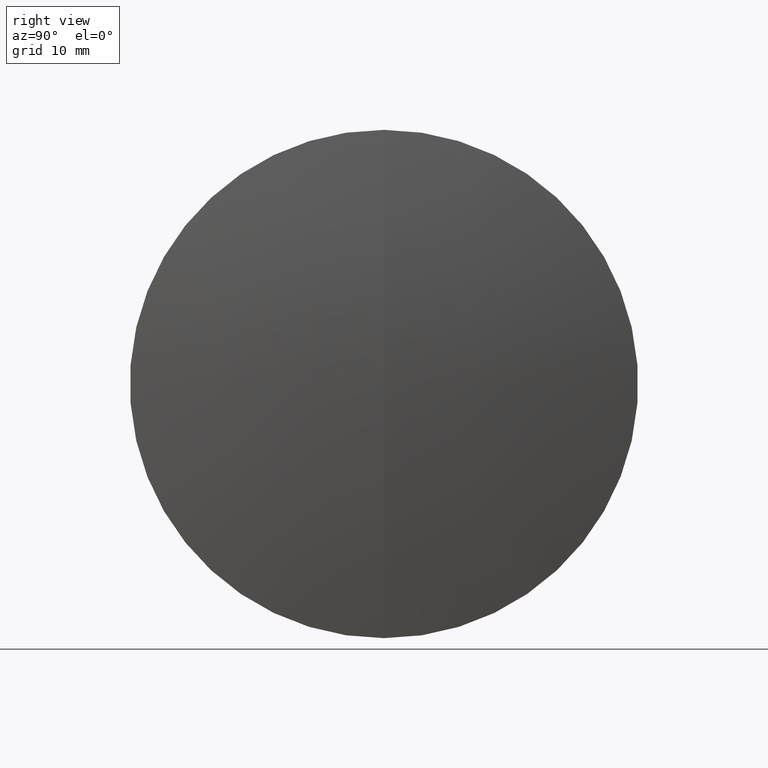
[diagram: clean part render]
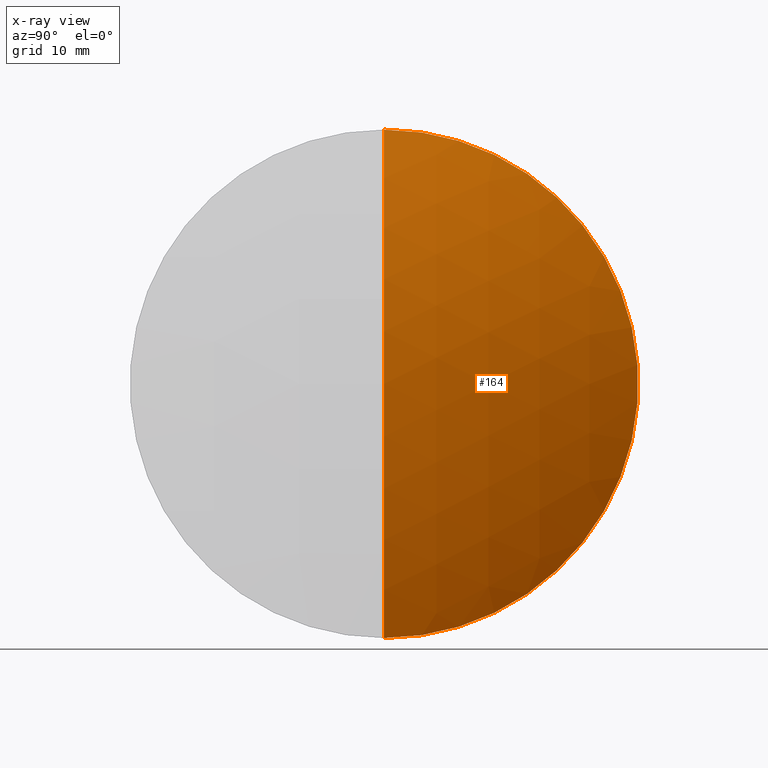
[diagram: x-ray — body ghosted, one internal face saturated and labeled with its STEP entity id]
A machine part, right view, then the same camera in x-ray: the body is ghosted and one INTERNAL B-rep face — a face not visible from any outside direction — is saturated and labeled: STEP entity #164.
In plain terms, the highlighted spherical surface has radius 71.39 mm.
Its self-contained STEP definition (entity closure, byte-faithful):
#12 = ORIENTED_EDGE ( 'NONE', *, *, #56, .F. ) ;
#27 = VERTEX_POINT ( 'NONE', #258 ) ;
#52 = DIRECTION ( 'NONE',  ( 0.0000000000000000000, 0.0000000000000000000, -1.000000000000000000 ) ) ;
#56 = EDGE_CURVE ( 'NONE', #27, #59, #345, .T. ) ;
#59 = VERTEX_POINT ( 'NONE', #113 ) ;
#64 = AXIS2_PLACEMENT_3D ( 'NONE', #97, #170, #75 ) ;
#69 = ORIENTED_EDGE ( 'NONE', *, *, #228, .F. ) ;
#75 = DIRECTION ( 'NONE',  ( 0.0000000000000000000, -1.224646799147353000E-016, 1.000000000000000000 ) ) ;
#88 = CARTESIAN_POINT ( 'NONE',  ( 324.0700261637978800, 0.0000000000000000000, -1.546338467101715600E-013 ) ) ;
#97 = CARTESIAN_POINT ( 'NONE',  ( 252.6800261637979200, 0.0000000000000000000, -1.590052234597280500E-013 ) ) ;
#108 = CARTESIAN_POINT ( 'NONE',  ( 316.7446973952964400, 0.0000000000000000000, 0.0000000000000000000 ) ) ;
#110 = AXIS2_PLACEMENT_3D ( 'NONE', #281, #150, #217 ) ;
#113 = CARTESIAN_POINT ( 'NONE',  ( 316.7446973952964400, 3.857637417314150900E-015, -31.49999999999990400 ) ) ;
#124 = DIRECTION ( 'NONE',  ( -1.000000000000000000, -0.0000000000000000000, -0.0000000000000000000 ) ) ;
#129 = AXIS2_PLACEMENT_3D ( 'NONE', #316, #245, #52 ) ;
#150 = DIRECTION ( 'NONE',  ( 0.0000000000000000000, 1.000000000000000000, 0.0000000000000000000 ) ) ;
#164 = ADVANCED_FACE ( 'NONE', ( #289 ), #263, .T. ) ;
#170 = DIRECTION ( 'NONE',  ( -0.0000000000000000000, 1.000000000000000000, 1.224646799147353200E-016 ) ) ;
#176 = AXIS2_PLACEMENT_3D ( 'NONE', #108, #124, #304 ) ;
#183 = CIRCLE ( 'NONE', #64, 71.38999999999997200 ) ;
#191 = ORIENTED_EDGE ( 'NONE', *, *, #267, .T. ) ;
#208 = CIRCLE ( 'NONE', #129, 71.38999999999997200 ) ;
#217 = DIRECTION ( 'NONE',  ( 0.0000000000000000000, 0.0000000000000000000, 1.000000000000000000 ) ) ;
#228 = EDGE_CURVE ( 'NONE', #269, #27, #208, .T. ) ;
#245 = DIRECTION ( 'NONE',  ( 0.0000000000000000000, -1.000000000000000000, 0.0000000000000000000 ) ) ;
#258 = CARTESIAN_POINT ( 'NONE',  ( 316.7446973952964400, 0.0000000000000000000, 31.49999999999990400 ) ) ;
#263 = SPHERICAL_SURFACE ( 'NONE', #110, 71.38999999999997200 ) ;
#267 = EDGE_CURVE ( 'NONE', #269, #59, #183, .T. ) ;
#269 = VERTEX_POINT ( 'NONE', #88 ) ;
#275 = EDGE_LOOP ( 'NONE', ( #69, #191, #12 ) ) ;
#281 = CARTESIAN_POINT ( 'NONE',  ( 252.6800261637979200, 0.0000000000000000000, -1.590052234597280500E-013 ) ) ;
#289 = FACE_OUTER_BOUND ( 'NONE', #275, .T. ) ;
#304 = DIRECTION ( 'NONE',  ( 0.0000000000000000000, 0.0000000000000000000, 1.000000000000000000 ) ) ;
#316 = CARTESIAN_POINT ( 'NONE',  ( 252.6800261637979200, 0.0000000000000000000, -1.590052234597280500E-013 ) ) ;
#345 = CIRCLE ( 'NONE', #176, 31.49999999999990400 ) ;